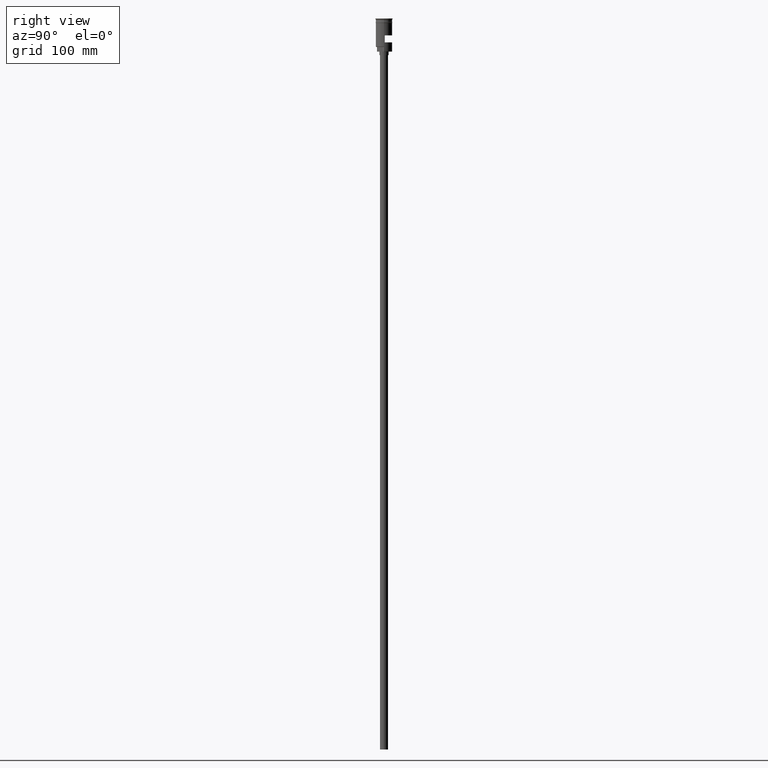
[diagram: clean part render]
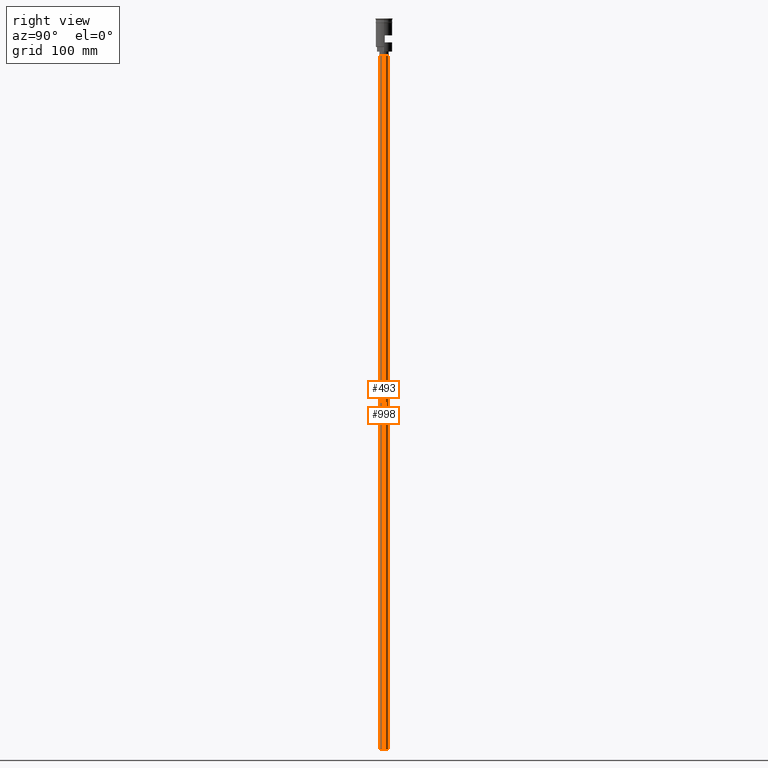
[diagram: same view with one multi-face feature highlighted, each face labeled with its STEP entity id]
A machine part, right view. The highlighted faces form ONE feature: a constant-radius fillet chain: 2 tangent blend faces with common blend radius 3.5 mm. The faces share edges in the B-rep.
Their STEP definitions:
[1] entity #493 (Cylinder):
#45 = CARTESIAN_POINT ( 'NONE',  ( 0.000000000000000000, 0.000000000000000000, -628.5000000000000000 ) ) ;
#57 = VERTEX_POINT ( 'NONE', #917 ) ;
#62 = CYLINDRICAL_SURFACE ( 'NONE', #94, 3.500000000000000444 ) ;
#94 = AXIS2_PLACEMENT_3D ( 'NONE', #45, #533, #548 ) ;
#102 = EDGE_CURVE ( 'NONE', #1251, #1381, #300, .T. ) ;
#146 = CIRCLE ( 'NONE', #818, 3.500000000000000444 ) ;
#300 = LINE ( 'NONE', #682, #352 ) ;
#352 = VECTOR ( 'NONE', #788, 1000.000000000000000 ) ;
#386 = ORIENTED_EDGE ( 'NONE', *, *, #102, .T. ) ;
#413 = CARTESIAN_POINT ( 'NONE',  ( 3.500000000000000444, 0.000000000000000000, -628.5000000000000000 ) ) ;
#435 = DIRECTION ( 'NONE',  ( -1.000000000000000000, 0.000000000000000000, 0.000000000000000000 ) ) ;
#482 = EDGE_CURVE ( 'NONE', #1042, #57, #1524, .T. ) ;
#493 = ADVANCED_FACE ( 'NONE', ( #1429 ), #62, .T. ) ;
#533 = DIRECTION ( 'NONE',  ( -0.000000000000000000, -0.000000000000000000, 1.000000000000000000 ) ) ;
#548 = DIRECTION ( 'NONE',  ( 1.000000000000000000, 0.000000000000000000, 0.000000000000000000 ) ) ;
#640 = EDGE_LOOP ( 'NONE', ( #1183, #1428, #386, #1206 ) ) ;
#681 = CARTESIAN_POINT ( 'NONE',  ( -3.500000000000000444, 4.286263797015737088E-16, -628.5000000000000000 ) ) ;
#682 = CARTESIAN_POINT ( 'NONE',  ( 3.500000000000000444, 0.000000000000000000, -628.5000000000000000 ) ) ;
#699 = CARTESIAN_POINT ( 'NONE',  ( 3.500000000000000444, 0.000000000000000000, -31.50000000000000000 ) ) ;
#785 = DIRECTION ( 'NONE',  ( 0.000000000000000000, 0.000000000000000000, -1.000000000000000000 ) ) ;
#788 = DIRECTION ( 'NONE',  ( -0.000000000000000000, -0.000000000000000000, 1.000000000000000000 ) ) ;
#807 = CARTESIAN_POINT ( 'NONE',  ( 0.000000000000000000, 0.000000000000000000, -628.5000000000000000 ) ) ;
#818 = AXIS2_PLACEMENT_3D ( 'NONE', #901, #785, #435 ) ;
#842 = EDGE_CURVE ( 'NONE', #1381, #57, #146, .T. ) ;
#901 = CARTESIAN_POINT ( 'NONE',  ( 0.000000000000000000, 0.000000000000000000, -31.50000000000000000 ) ) ;
#917 = CARTESIAN_POINT ( 'NONE',  ( -3.500000000000000444, 4.286263797015737088E-16, -31.50000000000000000 ) ) ;
#996 = VECTOR ( 'NONE', #1291, 1000.000000000000000 ) ;
#1031 = DIRECTION ( 'NONE',  ( 0.000000000000000000, 0.000000000000000000, -1.000000000000000000 ) ) ;
#1042 = VERTEX_POINT ( 'NONE', #1433 ) ;
#1183 = ORIENTED_EDGE ( 'NONE', *, *, #482, .F. ) ;
#1206 = ORIENTED_EDGE ( 'NONE', *, *, #842, .T. ) ;
#1251 = VERTEX_POINT ( 'NONE', #413 ) ;
#1291 = DIRECTION ( 'NONE',  ( -0.000000000000000000, -0.000000000000000000, 1.000000000000000000 ) ) ;
#1297 = EDGE_CURVE ( 'NONE', #1251, #1042, #1414, .T. ) ;
#1381 = VERTEX_POINT ( 'NONE', #699 ) ;
#1405 = DIRECTION ( 'NONE',  ( -1.000000000000000000, 0.000000000000000000, 0.000000000000000000 ) ) ;
#1414 = CIRCLE ( 'NONE', #1468, 3.500000000000000444 ) ;
#1428 = ORIENTED_EDGE ( 'NONE', *, *, #1297, .F. ) ;
#1429 = FACE_OUTER_BOUND ( 'NONE', #640, .T. ) ;
#1433 = CARTESIAN_POINT ( 'NONE',  ( -3.500000000000000444, 4.286263797015737088E-16, -628.5000000000000000 ) ) ;
#1468 = AXIS2_PLACEMENT_3D ( 'NONE', #807, #1031, #1405 ) ;
#1524 = LINE ( 'NONE', #681, #996 ) ;
[2] entity #998 (Cylinder):
#57 = VERTEX_POINT ( 'NONE', #917 ) ;
#100 = CARTESIAN_POINT ( 'NONE',  ( 0.000000000000000000, 0.000000000000000000, -628.5000000000000000 ) ) ;
#102 = EDGE_CURVE ( 'NONE', #1251, #1381, #300, .T. ) ;
#156 = ORIENTED_EDGE ( 'NONE', *, *, #1492, .F. ) ;
#300 = LINE ( 'NONE', #682, #352 ) ;
#352 = VECTOR ( 'NONE', #788, 1000.000000000000000 ) ;
#378 = AXIS2_PLACEMENT_3D ( 'NONE', #646, #918, #789 ) ;
#413 = CARTESIAN_POINT ( 'NONE',  ( 3.500000000000000444, 0.000000000000000000, -628.5000000000000000 ) ) ;
#473 = CYLINDRICAL_SURFACE ( 'NONE', #1597, 3.500000000000000444 ) ;
#482 = EDGE_CURVE ( 'NONE', #1042, #57, #1524, .T. ) ;
#500 = CARTESIAN_POINT ( 'NONE',  ( 0.000000000000000000, 0.000000000000000000, -628.5000000000000000 ) ) ;
#615 = AXIS2_PLACEMENT_3D ( 'NONE', #500, #1347, #1118 ) ;
#646 = CARTESIAN_POINT ( 'NONE',  ( 0.000000000000000000, 0.000000000000000000, -31.50000000000000000 ) ) ;
#681 = CARTESIAN_POINT ( 'NONE',  ( -3.500000000000000444, 4.286263797015737088E-16, -628.5000000000000000 ) ) ;
#682 = CARTESIAN_POINT ( 'NONE',  ( 3.500000000000000444, 0.000000000000000000, -628.5000000000000000 ) ) ;
#687 = EDGE_LOOP ( 'NONE', ( #156, #970, #906, #792 ) ) ;
#699 = CARTESIAN_POINT ( 'NONE',  ( 3.500000000000000444, 0.000000000000000000, -31.50000000000000000 ) ) ;
#717 = CIRCLE ( 'NONE', #378, 3.500000000000000444 ) ;
#729 = DIRECTION ( 'NONE',  ( 1.000000000000000000, 0.000000000000000000, 0.000000000000000000 ) ) ;
#788 = DIRECTION ( 'NONE',  ( -0.000000000000000000, -0.000000000000000000, 1.000000000000000000 ) ) ;
#789 = DIRECTION ( 'NONE',  ( -1.000000000000000000, 0.000000000000000000, 0.000000000000000000 ) ) ;
#792 = ORIENTED_EDGE ( 'NONE', *, *, #102, .F. ) ;
#906 = ORIENTED_EDGE ( 'NONE', *, *, #1319, .T. ) ;
#917 = CARTESIAN_POINT ( 'NONE',  ( -3.500000000000000444, 4.286263797015737088E-16, -31.50000000000000000 ) ) ;
#918 = DIRECTION ( 'NONE',  ( 0.000000000000000000, 0.000000000000000000, -1.000000000000000000 ) ) ;
#970 = ORIENTED_EDGE ( 'NONE', *, *, #482, .T. ) ;
#996 = VECTOR ( 'NONE', #1291, 1000.000000000000000 ) ;
#998 = ADVANCED_FACE ( 'NONE', ( #1592 ), #473, .T. ) ;
#1042 = VERTEX_POINT ( 'NONE', #1433 ) ;
#1118 = DIRECTION ( 'NONE',  ( -1.000000000000000000, 0.000000000000000000, 0.000000000000000000 ) ) ;
#1199 = DIRECTION ( 'NONE',  ( -0.000000000000000000, -0.000000000000000000, 1.000000000000000000 ) ) ;
#1251 = VERTEX_POINT ( 'NONE', #413 ) ;
#1291 = DIRECTION ( 'NONE',  ( -0.000000000000000000, -0.000000000000000000, 1.000000000000000000 ) ) ;
#1319 = EDGE_CURVE ( 'NONE', #57, #1381, #717, .T. ) ;
#1347 = DIRECTION ( 'NONE',  ( 0.000000000000000000, 0.000000000000000000, -1.000000000000000000 ) ) ;
#1381 = VERTEX_POINT ( 'NONE', #699 ) ;
#1419 = CIRCLE ( 'NONE', #615, 3.500000000000000444 ) ;
#1433 = CARTESIAN_POINT ( 'NONE',  ( -3.500000000000000444, 4.286263797015737088E-16, -628.5000000000000000 ) ) ;
#1492 = EDGE_CURVE ( 'NONE', #1042, #1251, #1419, .T. ) ;
#1524 = LINE ( 'NONE', #681, #996 ) ;
#1592 = FACE_OUTER_BOUND ( 'NONE', #687, .T. ) ;
#1597 = AXIS2_PLACEMENT_3D ( 'NONE', #100, #1199, #729 ) ;